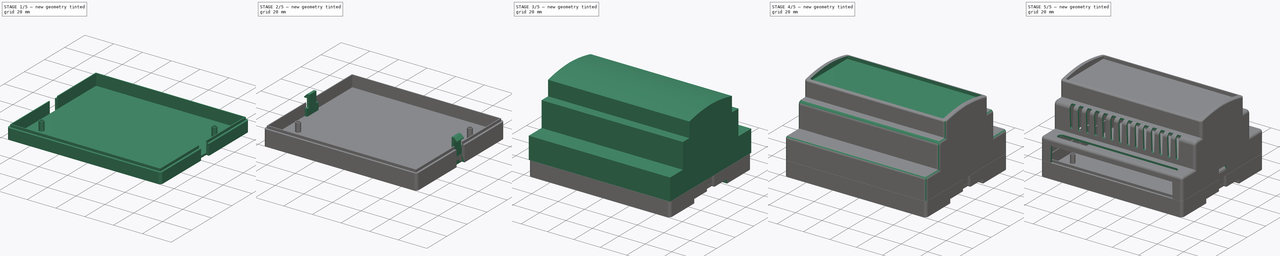
[diagram: build sequence overview — one tinted view per stage of 5, left to right]
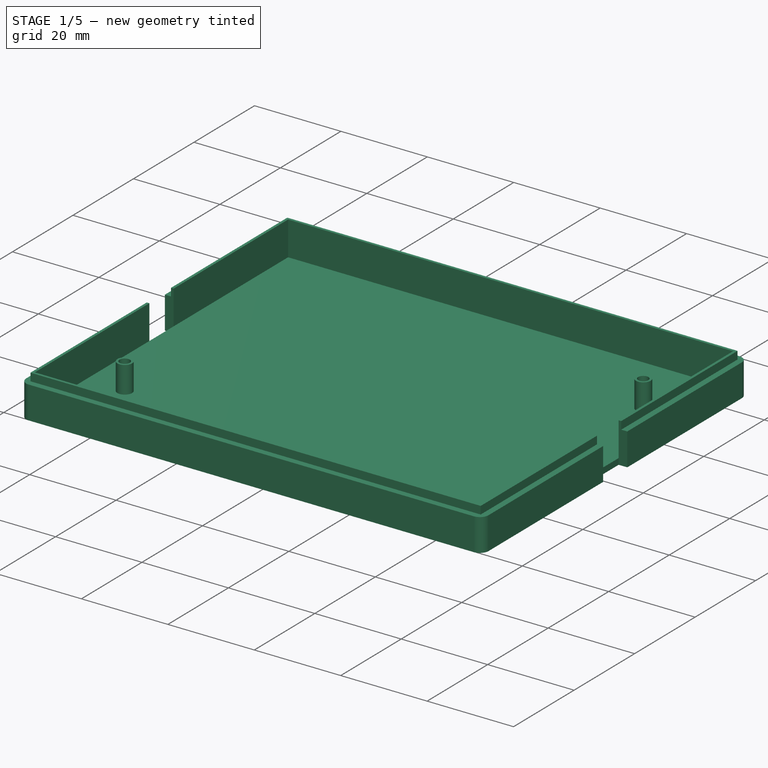
[diagram: stage 1 of 5 — iso view after this stage's code; geometry added in this stage tinted green]
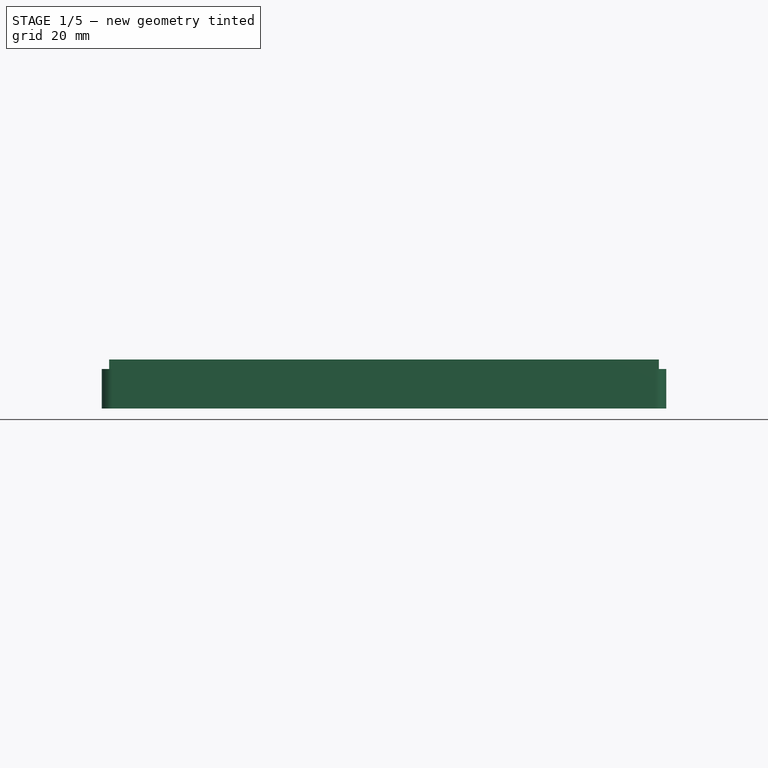
[diagram: stage 1 of 5 — front view after this stage's code; geometry added in this stage tinted green]
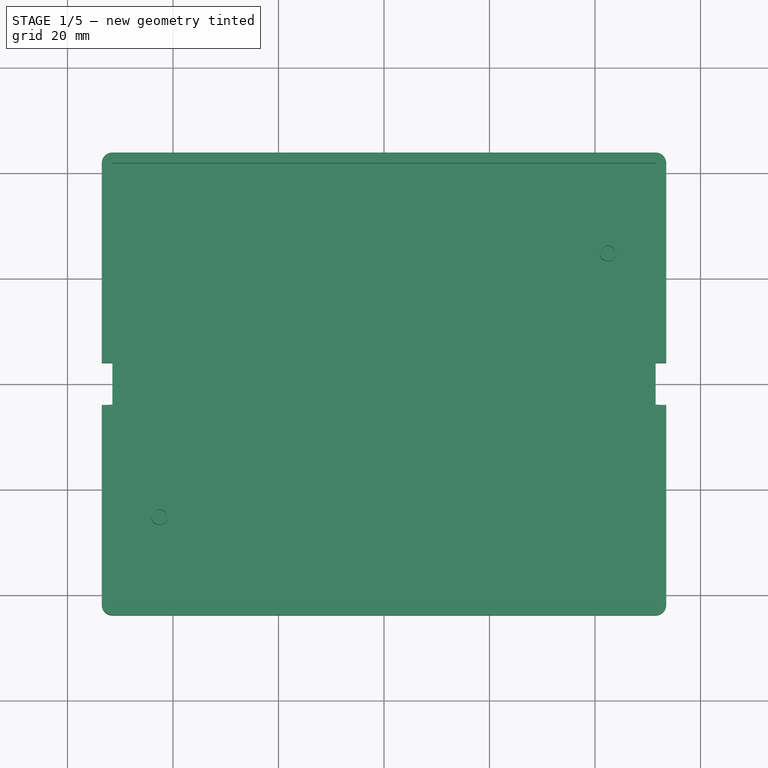
[diagram: stage 1 of 5 — top view after this stage's code; geometry added in this stage tinted green]
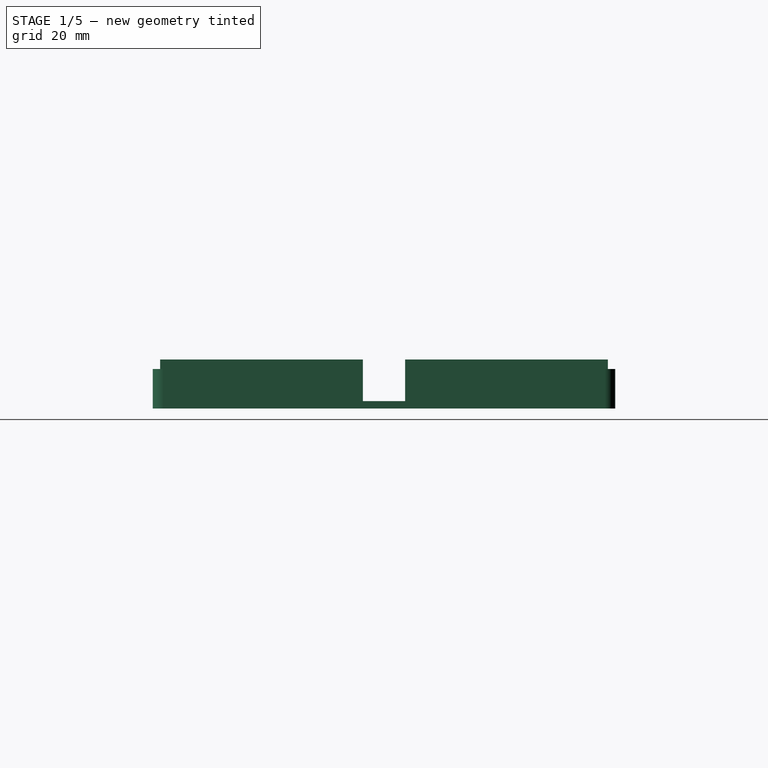
[diagram: stage 1 of 5 — right view after this stage's code; geometry added in this stage tinted green]
FCSTD DOCUMENT  (FreeCAD 1.0R39109 (Git))
Label: Tarea 2
License: All rights reserved
LicenseURL: https://en.wikipedia.org/wiki/All_rights_reserved
objects: Sketcher::SketchObject×19, PartDesign::Pocket×13, PartDesign::Pad×8, PartDesign::Fillet×7, PartDesign::Mirrored×6, PartDesign::Thickness×2, PartDesign::Chamfer×2, PartDesign::Body×2, PartDesign::LinearPattern×1, PartDesign::MultiTransform×1
note: 152 computed .brp shape members not serialized (recipe doc carries the construction recipe); baked Part::Feature solids carry a one-line shape summary decoded from their .brp

FEATURE [Sketcher::SketchObject] Sketch007
  ArcFitTolerance = 1e-06
  AttachmentSupport = -> [XY_Plane001]
  FullyConstrained = true
  MakeInternals = false
  MapMode = 5
  sketch-geometry (5):
    g0: LineSegment StartX=-53.5 StartY=-43.85 StartZ=0 EndX=53.5 EndY=-43.85 EndZ=0
    g1: LineSegment StartX=53.5 StartY=-43.85 StartZ=0 EndX=53.5 EndY=43.85 EndZ=0
    g2: LineSegment StartX=53.5 StartY=43.85 StartZ=0 EndX=-53.5 EndY=43.85 EndZ=0
    g3: LineSegment StartX=-53.5 StartY=43.85 StartZ=0 EndX=-53.5 EndY=-43.85 EndZ=0
    g4: GeomPoint [constr] X=0 Y=0 Z=0
  constraints (12):
    c: Coincident(g0,g1)
    c: Coincident(g1,g2)
    c: Coincident(g2,g3)
    c: Coincident(g3,g0)
    c: Horizontal(g0)
    c: Horizontal(g2)
    c: Vertical(g1)
    c: Vertical(g3)
    c: Symmetric(g2,g0,g4)
    c: Distance(g1,g3) = 107
    c: Distance(g0,g2) = 87.7
    c: Coincident(g4,g-1)
FEATURE [PartDesign::Pad] Pad002
  Direction = (0,0,1)
  Length = 7.6
  Length2 = 1.7
  Profile = -> Sketch007
  ReferenceAxis = -> Sketch007 [N_Axis]
  Refine = true
  Reversed = true
  Suppressed = false
  Type = 4
FEATURE [PartDesign::Thickness] Thickness001
  Base = -> Pad002 [Face6]
  BaseFeature = -> Pad002
  Intersection = false
  Join = 0
  Mode = 0
  Refine = true
  Reversed = true
  SupportTransform = false
  Suppressed = false
  Value = 2
FEATURE [PartDesign::Pocket] Pocket005
  BaseFeature = -> Thickness001
  Direction = (0,0,-1)
  Length = 0.6
  Length2 = 5
  Profile = -> Thickness001 [Face11]
  Refine = true
  Suppressed = false
  Type = 0
FEATURE [Sketcher::SketchObject] Sketch008
  ArcFitTolerance = 1e-06
  AttachmentSupport = -> [Pocket005]
  ExternalGeometry = -> [Pocket005]
  FullyConstrained = true
  MakeInternals = false
  MapMode = 5
  Placement = pos=(0,0,1.7) rot=(0,0,1;0rad)
  sketch-geometry (10):
    g0: LineSegment StartX=-52.1 StartY=-42.45 StartZ=0 EndX=52.1 EndY=-42.45 EndZ=0
    g1: LineSegment StartX=52.1 StartY=-42.45 StartZ=0 EndX=52.1 EndY=42.45 EndZ=0
    g2: LineSegment StartX=52.1 StartY=42.45 StartZ=0 EndX=-52.1 EndY=42.45 EndZ=0
    g3: LineSegment StartX=-52.1 StartY=42.45 StartZ=0 EndX=-52.1 EndY=-42.45 EndZ=0
    g4: GeomPoint [constr] X=0 Y=0 Z=0
    g5: LineSegment StartX=-53.5 StartY=-43.85 StartZ=0 EndX=53.5 EndY=-43.85 EndZ=0
    g6: LineSegment StartX=53.5 StartY=-43.85 StartZ=0 EndX=53.5 EndY=43.85 EndZ=0
    g7: LineSegment StartX=53.5 StartY=43.85 StartZ=0 EndX=-53.5 EndY=43.85 EndZ=0
    g8: LineSegment StartX=-53.5 StartY=43.85 StartZ=0 EndX=-53.5 EndY=-43.85 EndZ=0
    g9: GeomPoint [constr] X=0 Y=0 Z=0
  constraints (23):
    c: Coincident(g0,g1)
    c: Coincident(g1,g2)
    c: Coincident(g2,g3)
    c: Coincident(g3,g0)
    c: Horizontal(g0)
    c: Horizontal(g2)
    c: Vertical(g1)
    c: Vertical(g3)
    c: Symmetric(g2,g0,g4)
    c: Coincident(g4,g-1)
    c: Distance(g2,g-3) = 0.6
    c: Distance(g-3,g1) = 0.6
    c: Coincident(g5,g6)
    c: Coincident(g6,g7)
    c: Coincident(g7,g8)
    c: Coincident(g8,g5)
    c: Horizontal(g5)
    c: Horizontal(g7)
    c: Vertical(g6)
    c: Vertical(g8)
    c: Symmetric(g7,g5,g9)
    c: Coincident(g9,g4)
    c: Coincident(g6,g-4)
FEATURE [PartDesign::Pocket] Pocket006
  BaseFeature = -> Pocket005
  Direction = (0,0,-1)
  Length = 1.8
  Length2 = 5
  Profile = -> Sketch008
  ReferenceAxis = -> Sketch008 [N_Axis]
  Refine = true
  Suppressed = false
  Type = 0
FEATURE [PartDesign::Fillet] Fillet006
  Base = -> Pocket006 [Edge2,Edge4,Edge8,Edge16]
  BaseFeature = -> Pocket006
  Radius = 2
  Refine = true
  SupportTransform = false
  Suppressed = false
  UseAllEdges = false
FEATURE [Sketcher::SketchObject] Sketch009
  ArcFitTolerance = 1e-06
  AttachmentSupport = -> [Fillet006]
  FullyConstrained = true
  MakeInternals = false
  MapMode = 5
  Placement = pos=(0,0,-6.2) rot=(0,0,1;0rad)
  sketch-geometry (4):
    g0: Circle CenterX=-42.5 CenterY=-25 CenterZ=0 NormalX=0 NormalY=0 NormalZ=1 AngleXU=0 Radius=1.7
    g1: Circle CenterX=-42.5 CenterY=-25 CenterZ=0 NormalX=0 NormalY=0 NormalZ=1 AngleXU=0 Radius=1.2
    g2: Circle CenterX=42.5 CenterY=25 CenterZ=0 NormalX=0 NormalY=0 NormalZ=1 AngleXU=0 Radius=1.7
    g3: Circle CenterX=42.5 CenterY=25 CenterZ=0 NormalX=0 NormalY=0 NormalZ=1 AngleXU=0 Radius=1.2
  constraints (10):
    c: Coincident(g1,g0)
    c: Diameter(g1) = 2.4
    c: Diameter(g0) = 3.4
    c: DistanceY(g0,g-1) = 25
    c: DistanceX(g0,g-1) = 42.5
    c: Coincident(g3,g2)
    c: Equal(g3,g1)
    c: Equal(g0,g2)
    c: DistanceX(g-1,g2) = 42.5
    c: Distance(g2,g-1) = 25
FEATURE [PartDesign::Pad] Pad003
  BaseFeature = -> Fillet006
  Direction = (0,0,1)
  Length = 6.2
  Length2 = 10
  Profile = -> Sketch009
  ReferenceAxis = -> Sketch009 [N_Axis]
  Refine = true
  Suppressed = false
  Type = 0
FEATURE [Sketcher::SketchObject] Sketch010
  ArcFitTolerance = 1e-06
  AttachmentSupport = -> [Pad003]
  ExternalGeometry = -> [Pad003]
  FullyConstrained = true
  MakeInternals = false
  MapMode = 5
  Placement = pos=(53.5,0,0) rot=(0.57735,0.57735,0.57735;2.0944rad)
  sketch-geometry (4):
    g0: LineSegment StartX=-4 StartY=-7.6 StartZ=0 EndX=4 EndY=-7.6 EndZ=0
    g1: LineSegment StartX=4 StartY=-7.6 StartZ=0 EndX=4 EndY=1.7 EndZ=0
    g2: LineSegment StartX=4 StartY=1.7 StartZ=0 EndX=-4 EndY=1.7 EndZ=0
    g3: LineSegment StartX=-4 StartY=1.7 StartZ=0 EndX=-4 EndY=-7.6 EndZ=0
  constraints (11):
    c: Coincident(g0,g1)
    c: Coincident(g1,g2)
    c: Coincident(g2,g3)
    c: Coincident(g3,g0)
    c: Horizontal(g0)
    c: Vertical(g1)
    c: Vertical(g3)
    c: PointOnObject(g0,g-3)
    c: PointOnObject(g1,g-4)
    c: Symmetric(g1,g2,g-2)
    c: DistanceX(g2,g2) = 8
FEATURE [PartDesign::Pocket] Pocket007
  BaseFeature = -> Pad003
  Direction = (-1,0,0)
  Length = 0
  Length2 = 5
  Profile = -> Sketch010
  ReferenceAxis = -> Sketch010 [N_Axis]
  Refine = true
  Suppressed = false
  Type = 3
  UpToFace = -> Pad003 [Face18]
FEATURE [PartDesign::Mirrored] Mirrored003
  BaseFeature = -> Pocket007
  MirrorPlane = -> YZ_Plane001
  Originals = -> [Pocket007]
  Refine = true
  Suppressed = false
  TransformMode = 0
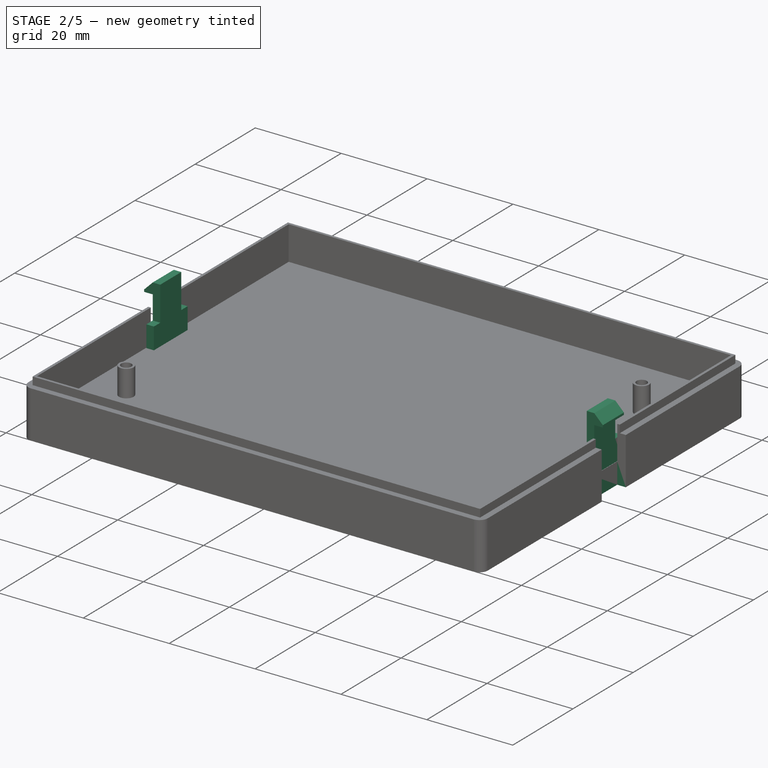
[diagram: stage 2 of 5 — iso view after this stage's code; geometry added in this stage tinted green]
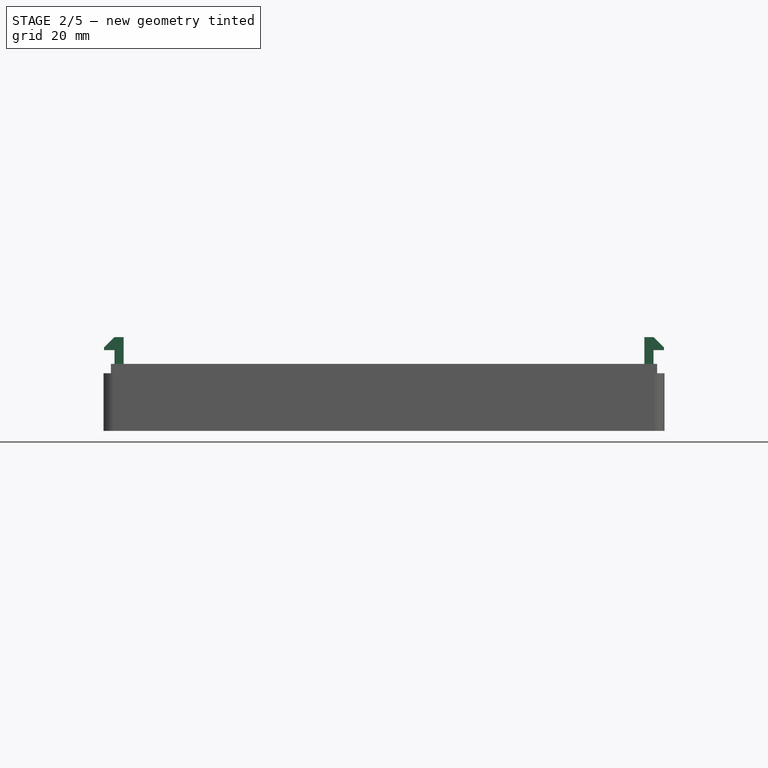
[diagram: stage 2 of 5 — front view after this stage's code; geometry added in this stage tinted green]
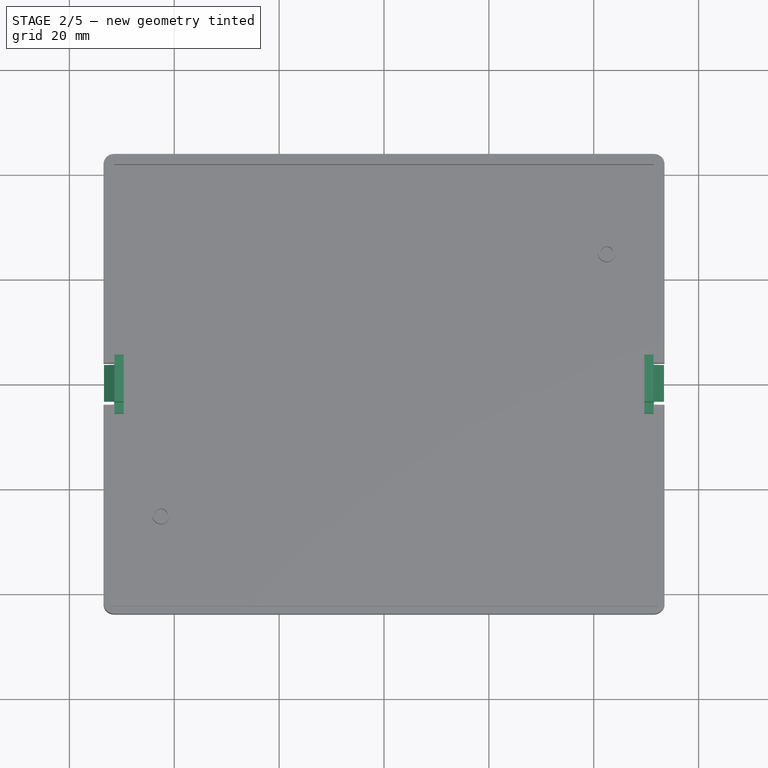
[diagram: stage 2 of 5 — top view after this stage's code; geometry added in this stage tinted green]
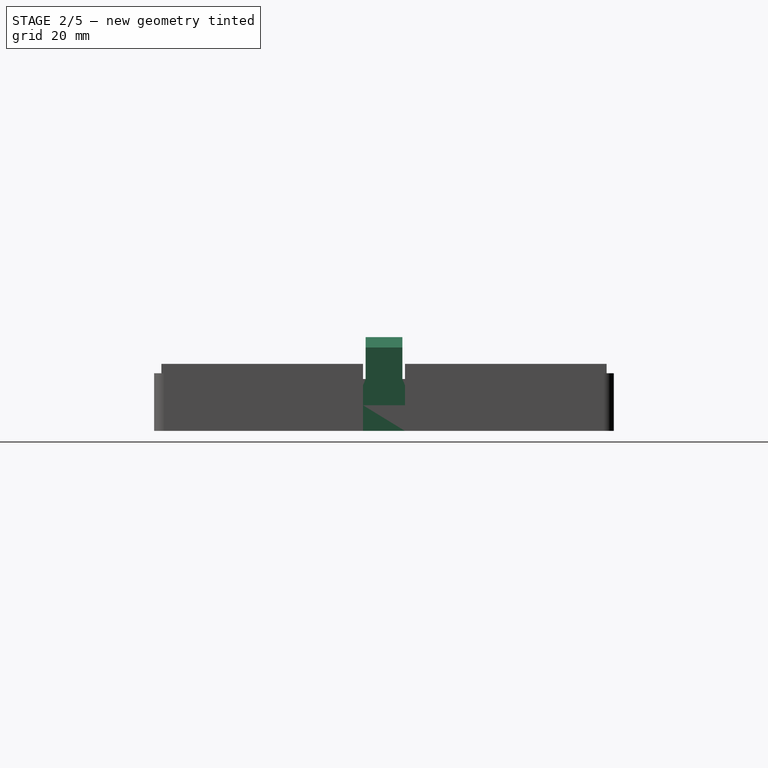
[diagram: stage 2 of 5 — right view after this stage's code; geometry added in this stage tinted green]
FEATURE [Sketcher::SketchObject] Sketch011
  ArcFitTolerance = 1e-06
  AttachmentSupport = -> [Mirrored003]
  ExternalGeometry = -> [Mirrored003]
  FullyConstrained = true
  MakeInternals = false
  MapMode = 5
  Placement = pos=(0,0,-6.2) rot=(0,0,1;0rad)
  sketch-geometry (5):
    g0: LineSegment StartX=51.4 StartY=-5.6 StartZ=0 EndX=51.4 EndY=5.6 EndZ=0
    g1: LineSegment StartX=51.4 StartY=5.6 StartZ=0 EndX=49.65 EndY=5.6 EndZ=0
    g2: LineSegment StartX=49.65 StartY=5.6 StartZ=0 EndX=49.65 EndY=-5.6 EndZ=0
    g3: LineSegment StartX=49.65 StartY=-5.6 StartZ=0 EndX=51.4 EndY=-5.6 EndZ=0
    g4: GeomPoint [constr] X=50.525 Y=1e-16 Z=0
  constraints (13):
    c: Coincident(g0,g1)
    c: Coincident(g1,g2)
    c: Coincident(g2,g3)
    c: Coincident(g3,g0)
    c: Vertical(g0)
    c: Vertical(g2)
    c: Horizontal(g1)
    c: Horizontal(g3)
    c: Symmetric(g2,g0,g4)
    c: PointOnObject(g4,g-1)
    c: Distance(g-2,g2) = 49.65
    c: Distance(g-3,g0) = 0.1
    c: DistanceY(g2,g2) = 11.2
FEATURE [PartDesign::Pad] Pad004
  BaseFeature = -> Mirrored003
  Direction = (0,0,1)
  Length = 13
  Length2 = 10
  Profile = -> Sketch011
  ReferenceAxis = -> Sketch011 [N_Axis]
  Refine = true
  Suppressed = false
  Type = 0
FEATURE [Sketcher::SketchObject] Sketch012
  ArcFitTolerance = 1e-06
  AttachmentSupport = -> [Pad004]
  ExternalGeometry = -> [Pad004]
  FullyConstrained = true
  MakeInternals = false
  MapMode = 5
  Placement = pos=(0,0,6.8) rot=(0,0,1;0rad)
  sketch-geometry (8):
    g0: LineSegment StartX=49.65 StartY=-5.6 StartZ=0 EndX=51.4 EndY=-5.6 EndZ=0
    g1: LineSegment StartX=51.4 StartY=-5.6 StartZ=0 EndX=51.4 EndY=-3.5 EndZ=0
    g2: LineSegment StartX=51.4 StartY=-3.5 StartZ=0 EndX=49.65 EndY=-3.5 EndZ=0
    g3: LineSegment StartX=49.65 StartY=-3.5 StartZ=0 EndX=49.65 EndY=-5.6 EndZ=0
    g4: LineSegment StartX=49.65 StartY=5.6 StartZ=0 EndX=51.4 EndY=5.6 EndZ=0
    g5: LineSegment StartX=51.4 StartY=5.6 StartZ=0 EndX=51.4 EndY=3.5 EndZ=0
    g6: LineSegment StartX=51.4 StartY=3.5 StartZ=0 EndX=49.65 EndY=3.5 EndZ=0
    g7: LineSegment StartX=49.65 StartY=3.5 StartZ=0 EndX=49.65 EndY=5.6 EndZ=0
  constraints (19):
    c: Coincident(g0,g1)
    c: Coincident(g1,g2)
    c: Coincident(g2,g3)
    c: Coincident(g3,g0)
    c: Horizontal(g0)
    c: Horizontal(g2)
    c: Vertical(g1)
    c: Vertical(g3)
    c: Coincident(g0,g-3)
    c: PointOnObject(g1,g-4)
    c: Distance(g-1,g2) = 3.5
    c: Symmetric(g0,g4,g-1)
    c: Symmetric(g0,g4,g-1)
    c: Symmetric(g1,g5,g-1)
    c: Symmetric(g1,g5,g-1)
    c: Symmetric(g2,g6,g-1)
    c: Symmetric(g2,g6,g-1)
    c: Symmetric(g3,g7,g-1)
    c: Symmetric(g3,g7,g-1)
FEATURE [PartDesign::Pocket] Pocket008
  BaseFeature = -> Pad004
  Direction = (0,0,-1)
  Length = 8
  Length2 = 5
  Profile = -> Sketch012
  ReferenceAxis = -> Sketch012 [N_Axis]
  Refine = true
  Suppressed = false
  Type = 0
FEATURE [Sketcher::SketchObject] Sketch013
  ArcFitTolerance = 1e-06
  AttachmentSupport = -> [Pocket008]
  ExternalGeometry = -> [Pocket008]
  FullyConstrained = true
  MakeInternals = false
  MapMode = 5
  Placement = pos=(51.4,0,0) rot=(0.57735,0.57735,0.57735;2.0944rad)
  sketch-geometry (4):
    g0: LineSegment StartX=-3.5 StartY=4.3 StartZ=0 EndX=3.5 EndY=4.3 EndZ=0
    g1: LineSegment StartX=3.5 StartY=4.3 StartZ=0 EndX=3.5 EndY=6.8 EndZ=0
    g2: LineSegment StartX=3.5 StartY=6.8 StartZ=0 EndX=-3.5 EndY=6.8 EndZ=0
    g3: LineSegment StartX=-3.5 StartY=6.8 StartZ=0 EndX=-3.5 EndY=4.3 EndZ=0
  constraints (11):
    c: Coincident(g0,g1)
    c: Coincident(g1,g2)
    c: Coincident(g2,g3)
    c: Coincident(g3,g0)
    c: Horizontal(g0)
    c: Horizontal(g2)
    c: Vertical(g1)
    c: Vertical(g3)
    c: PointOnObject(g0,g-4)
    c: Coincident(g1,g-3)
    c: DistanceY(g1,g1) = 2.5
FEATURE [PartDesign::Pad] Pad005
  BaseFeature = -> Pocket008
  Direction = (1,0,0)
  Length = 2
  Length2 = 10
  Profile = -> Sketch013
  ReferenceAxis = -> Sketch013 [N_Axis]
  Refine = true
  Suppressed = false
  Type = 0
FEATURE [PartDesign::Chamfer] Chamfer
  Angle = 45
  Base = -> Pad005 [Edge129]
  BaseFeature = -> Pad005
  ChamferType = 0
  FlipDirection = false
  Refine = true
  Size = 2
  Size2 = 1
  SupportTransform = false
  Suppressed = false
  UseAllEdges = false
FEATURE [PartDesign::Mirrored] Mirrored004
  BaseFeature = -> Chamfer
  MirrorPlane = -> YZ_Plane001
  Originals = -> [Pad004,Pad005,Pocket008,Chamfer]
  Refine = true
  Suppressed = false
  TransformMode = 0
FEATURE [PartDesign::Body] Body
  AllowCompound = false
  Group = -> [Sketch,Pad,Sketch001,Pocket,Mirrored,Thickness,Fillet,Fillet001,Fillet002,Sketch002,Pocket001,Fillet003,Sketch003,Pad001,Sketch004,Pocket002,Mirrored001,Sketch005,Fillet004,Fillet005,Pocket003,MultiTransform,LinearPattern,Mirrored002,Sketch006,Pocket004,Sketch014,Pocket009]
  Origin = -> Origin
  Tip = -> Pocket009
FEATURE [Sketcher::SketchObject] Sketch015
  ArcFitTolerance = 1e-06
  AttachmentSupport = -> [Mirrored004]
  ExternalGeometry = -> [Mirrored004]
  FullyConstrained = true
  MakeInternals = false
  MapMode = 5
  Placement = pos=(0,0,-7.6) rot=(1,0,0;3.14159rad)
  sketch-geometry (13):
    g0: LineSegment StartX=51.5 StartY=41.85 StartZ=0 EndX=-51.5 EndY=41.85 EndZ=0
    g1: LineSegment StartX=-51.5 StartY=41.85 StartZ=0 EndX=-51.5 EndY=20 EndZ=0
    g2: LineSegment StartX=-51.5 StartY=20 StartZ=0 EndX=51.5 EndY=20 EndZ=0
    g3: LineSegment StartX=51.5 StartY=20 StartZ=0 EndX=51.5 EndY=41.85 EndZ=0
    g4: GeomPoint [constr] X=0 Y=30.925 Z=0
    g5: LineSegment StartX=-51.5 StartY=-41.85 StartZ=0 EndX=-12 EndY=-41.85 EndZ=0
    g6: LineSegment StartX=-12 StartY=-41.85 StartZ=0 EndX=-12 EndY=-20 EndZ=0
    g7: LineSegment StartX=-12 StartY=-20 StartZ=0 EndX=-51.5 EndY=-20 EndZ=0
    g8: LineSegment StartX=-51.5 StartY=-20 StartZ=0 EndX=-51.5 EndY=-41.85 EndZ=0
    g9: LineSegment StartX=51.5 StartY=-41.85 StartZ=0 EndX=12 EndY=-41.85 EndZ=0
    g10: LineSegment StartX=12 StartY=-41.85 StartZ=0 EndX=12 EndY=-20 EndZ=0
    g11: LineSegment StartX=12 StartY=-20 StartZ=0 EndX=51.5 EndY=-20 EndZ=0
    g12: LineSegment StartX=51.5 StartY=-20 StartZ=0 EndX=51.5 EndY=-41.85 EndZ=0
  constraints (33):
    c: Coincident(g0,g1)
    c: Coincident(g1,g2)
    c: Coincident(g2,g3)
    c: Coincident(g3,g0)
    c: Horizontal(g0)
    c: Horizontal(g2)
    c: Vertical(g1)
    c: Vertical(g3)
    c: Symmetric(g2,g0,g4)
    c: PointOnObject(g4,g-2)
    c: Distance(g-3,g0) = 2
    c: Distance(g-5,g3) = 2
    c: Distance(g2,g-1) = 20
    c: Coincident(g5,g6)
    c: Coincident(g6,g7)
    c: Coincident(g7,g8)
    c: Coincident(g8,g5)
    c: Horizontal(g5)
    c: Horizontal(g7)
    c: Vertical(g6)
    c: Vertical(g8)
    c: Distance(g7,g-1) = 20
    c: Distance(g-4,g8) = 2
    c: Distance(g5,g-6) = 2
    c: Distance(g-2,g6) = 12
    c: Symmetric(g5,g9,g-2)
    c: Symmetric(g5,g9,g-2)
    c: Symmetric(g6,g10,g-2)
    c: Symmetric(g6,g10,g-2)
    c: Symmetric(g7,g11,g-2)
    c: Symmetric(g7,g11,g-2)
    c: Symmetric(g8,g12,g-2)
    c: Symmetric(g8,g12,g-2)
FEATURE [PartDesign::Pad] Pad006
  BaseFeature = -> Mirrored004
  Direction = (0,0,-1)
  Length = 3.5
  Length2 = 10
  Profile = -> Mirrored004 [Face31]
  Refine = true
  Suppressed = false
  Type = 0
FEATURE [PartDesign::Pocket] Pocket010
  BaseFeature = -> Pad006
  Direction = (0,0,1)
  Length = 5
  Length2 = 5
  Profile = -> Sketch015
  ReferenceAxis = -> Sketch015 [N_Axis]
  Refine = true
  Reversed = true
  Suppressed = false
  Type = 1
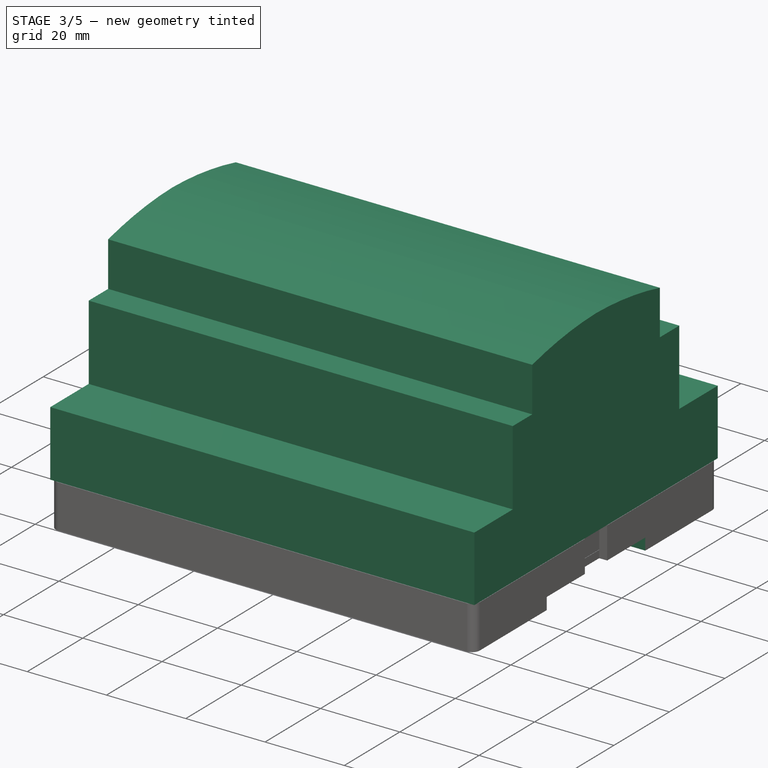
[diagram: stage 3 of 5 — iso view after this stage's code; geometry added in this stage tinted green]
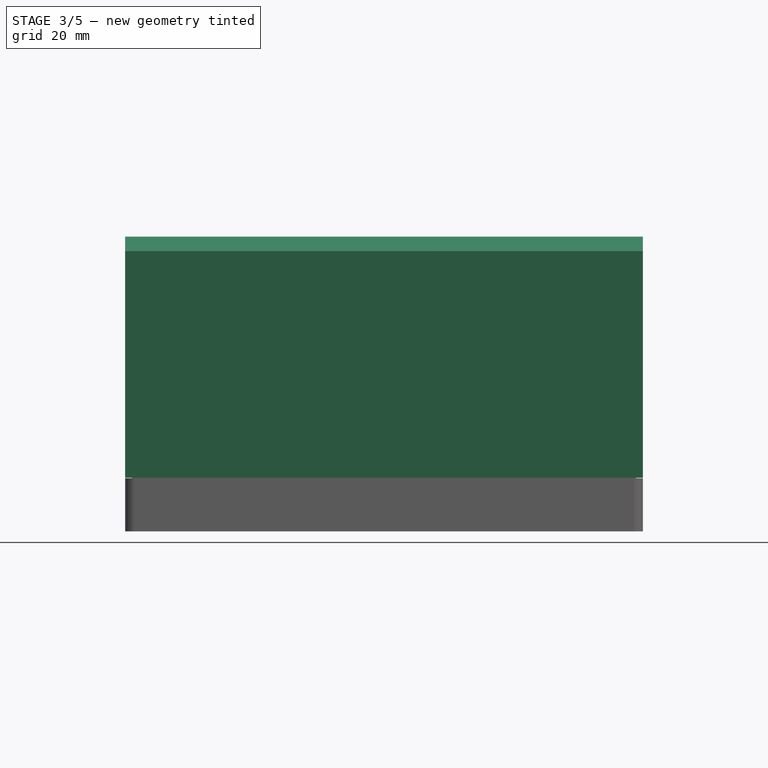
[diagram: stage 3 of 5 — front view after this stage's code; geometry added in this stage tinted green]
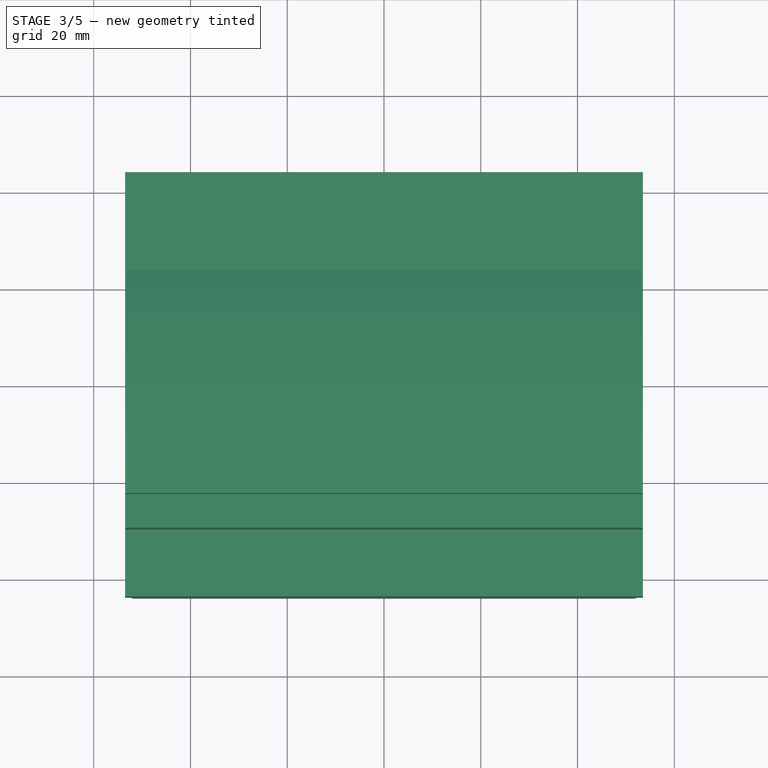
[diagram: stage 3 of 5 — top view after this stage's code; geometry added in this stage tinted green]
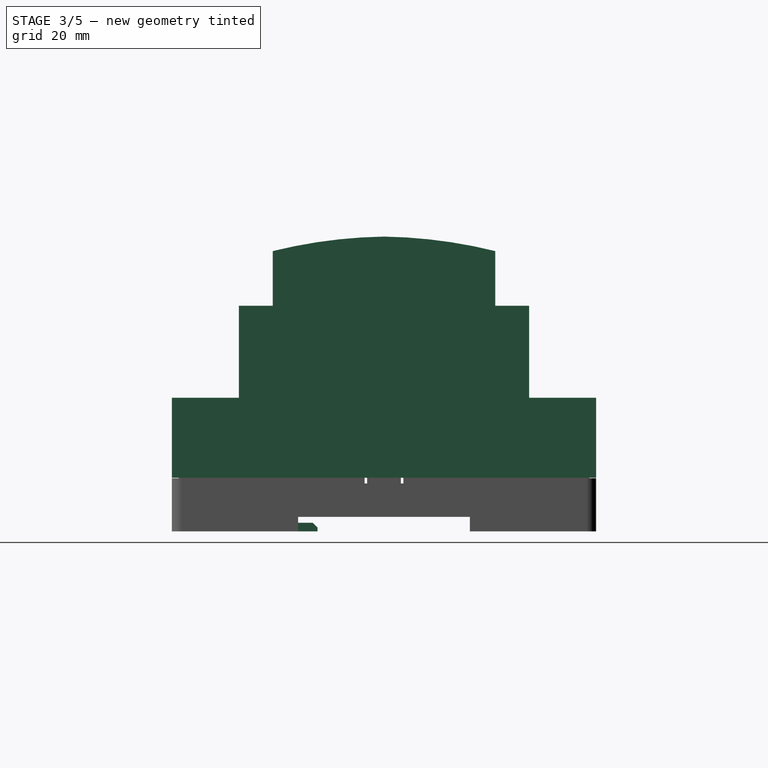
[diagram: stage 3 of 5 — right view after this stage's code; geometry added in this stage tinted green]
FEATURE [Sketcher::SketchObject] Sketch
  ArcFitTolerance = 1e-06
  AttachmentSupport = -> [YZ_Plane]
  FullyConstrained = true
  MakeInternals = false
  MapMode = 5
  Placement = pos=(0,0,0) rot=(0.57735,0.57735,0.57735;2.0944rad)
  sketch-geometry (14):
    g0: LineSegment StartX=-43.85 StartY=0 StartZ=0 EndX=-43.85 EndY=16.54 EndZ=0
    g1: LineSegment StartX=-43.85 StartY=16.54 StartZ=0 EndX=-30 EndY=16.54 EndZ=0
    g2: LineSegment StartX=-30 StartY=16.54 StartZ=0 EndX=-30 EndY=35.54 EndZ=0
    g3: LineSegment StartX=-30 StartY=35.54 StartZ=0 EndX=-23 EndY=35.54 EndZ=0
    g4: LineSegment StartX=-23 StartY=35.54 StartZ=0 EndX=-23 EndY=49.84 EndZ=0
    g5: LineSegment StartX=-23 StartY=49.84 StartZ=0 EndX=0 EndY=49.84 EndZ=0
    g6: LineSegment StartX=-43.85 StartY=0 StartZ=0 EndX=0 EndY=0 EndZ=0
    g7: LineSegment StartX=43.85 StartY=0 StartZ=0 EndX=43.85 EndY=16.54 EndZ=0
    g8: LineSegment StartX=43.85 StartY=16.54 StartZ=0 EndX=30 EndY=16.54 EndZ=0
    g9: LineSegment StartX=30 StartY=16.54 StartZ=0 EndX=30 EndY=35.54 EndZ=0
    g10: LineSegment StartX=30 StartY=35.54 StartZ=0 EndX=23 EndY=35.54 EndZ=0
    g11: LineSegment StartX=23 StartY=35.54 StartZ=0 EndX=23 EndY=49.84 EndZ=0
    g12: LineSegment StartX=23 StartY=49.84 StartZ=0 EndX=0 EndY=49.84 EndZ=0
    g13: LineSegment StartX=43.85 StartY=0 StartZ=0 EndX=0 EndY=0 EndZ=0
  constraints (35):
    c: PointOnObject(g5,g-2)
    c: PointOnObject(g0,g-1)
    c: Coincident(g0,g1)
    c: Horizontal(g1)
    c: Coincident(g1,g2)
    c: Coincident(g2,g3)
    c: Horizontal(g3)
    c: Coincident(g3,g4)
    c: Coincident(g4,g5)
    c: Horizontal(g5)
    c: Distance(g5,g5) = 23
    c: DistanceX(g0,g-1) = 43.85
    c: Distance(g-1,g5) = 49.84
    c: Distance(g-1,g3) = 35.54
    c: Distance(g-1,g1) = 16.54
    c: Coincident(g6,g0)
    c: Coincident(g6,g-1)
    c: Distance(g2,g-2) = 30
    c: Symmetric(g0,g7,g-2)
    c: Symmetric(g0,g7,g-2)
    c: Symmetric(g1,g8,g-2)
    c: Symmetric(g1,g8,g-2)
    c: Symmetric(g2,g9,g-2)
    c: Symmetric(g2,g9,g-2)
    c: Symmetric(g3,g10,g-2)
    c: Symmetric(g3,g10,g-2)
    c: Symmetric(g4,g11,g-2)
    c: Symmetric(g4,g11,g-2)
    c: Symmetric(g5,g12,g-2)
    c: Symmetric(g6,g13,g-2)
    c: Coincident(g12,g5)
    c: Coincident(g13,g6)
    c: Vertical(g4)
    c: Vertical(g2)
    c: Vertical(g0)
FEATURE [PartDesign::Pad] Pad
  Direction = (1,0,0)
  Length = 107
  Length2 = 10
  Midplane = true
  Placement = pos=(0,0,0) rot=(1,1,1;2.0944rad)
  Profile = -> Sketch
  ReferenceAxis = -> Sketch [N_Axis]
  Refine = true
  Suppressed = false
  Type = 0
FEATURE [Sketcher::SketchObject] Sketch001
  ArcFitTolerance = 1e-06
  AttachmentSupport = -> [Pad]
  ExternalGeometry = -> [Pad]
  FullyConstrained = true
  MakeInternals = false
  MapMode = 5
  Placement = pos=(53.5,0,0) rot=(0.57735,0.57735,0.57735;2.0944rad)
  sketch-geometry (3):
    g0: ArcOfCircle CenterX=1.61095 CenterY=-52.1773 CenterZ=0 NormalX=0 NormalY=0 NormalZ=1 AngleXU=0 Radius=102.03 StartAngle=1.58659 EndAngle=1.81441
    g1: LineSegment StartX=-23 StartY=46.84 StartZ=0 EndX=-23 EndY=49.84 EndZ=0
    g2: LineSegment StartX=-23 StartY=49.84 StartZ=0 EndX=3.411e-13 EndY=49.84 EndZ=0
  constraints (10):
    c: PointOnObject(g0,g-2)
    c: PointOnObject(g0,g-4)
    c: PointOnObject(g0,g-3)
    c: DistanceY(g0,g-4) = 3
    c: Coincident(g0,g1)
    c: Coincident(g1,g2)
    c: Coincident(g2,g0)
    c: Horizontal(g2)
    c: Radius(g0) = 102.03
    c: DistanceX(g2,g2) = 23
FEATURE [PartDesign::Pocket] Pocket
  BaseFeature = -> Pad
  Direction = (-1,0,0)
  Length = 5
  Length2 = 5
  Placement = pos=(0,0,0) rot=(1,1,1;2.0944rad)
  Profile = -> Sketch001
  ReferenceAxis = -> Sketch001 [N_Axis]
  Refine = true
  Suppressed = false
  Type = 1
FEATURE [PartDesign::Mirrored] Mirrored
  BaseFeature = -> Pocket
  MirrorPlane = -> XZ_Plane
  Originals = -> [Pocket]
  Placement = pos=(0,0,0) rot=(1,1,1;2.0944rad)
  Refine = true
  Suppressed = false
  TransformMode = 0
FEATURE [Sketcher::SketchObject] Sketch016
  ArcFitTolerance = 1e-06
  AttachmentSupport = -> [Pocket010]
  ExternalGeometry = -> [Pocket010]
  FullyConstrained = true
  MakeInternals = false
  MapMode = 5
  Placement = pos=(-53.5,0,0) rot=(0.57735,-0.57735,-0.57735;2.0944rad)
  sketch-geometry (5):
    g0: LineSegment StartX=17.75 StartY=-8.1 StartZ=0 EndX=-17.75 EndY=-8.1 EndZ=0
    g1: LineSegment StartX=-17.75 StartY=-8.1 StartZ=0 EndX=-17.75 EndY=-11.1 EndZ=0
    g2: LineSegment StartX=-17.75 StartY=-11.1 StartZ=0 EndX=17.75 EndY=-11.1 EndZ=0
    g3: LineSegment StartX=17.75 StartY=-11.1 StartZ=0 EndX=17.75 EndY=-8.1 EndZ=0
    g4: GeomPoint [constr] X=0 Y=-9.6 Z=0
  constraints (13):
    c: Coincident(g0,g1)
    c: Coincident(g1,g2)
    c: Coincident(g2,g3)
    c: Coincident(g3,g0)
    c: Horizontal(g0)
    c: Horizontal(g2)
    c: Vertical(g1)
    c: Vertical(g3)
    c: Symmetric(g2,g0,g4)
    c: PointOnObject(g4,g-2)
    c: PointOnObject(g2,g-3)
    c: DistanceX(g2,g2) = 35.5
    c: DistanceY(g3,g3) = 3
FEATURE [PartDesign::Pocket] Pocket011
  BaseFeature = -> Pocket010
  Direction = (1,0,0)
  Length = 9
  Length2 = 5
  Profile = -> Sketch016
  ReferenceAxis = -> Sketch016 [N_Axis]
  Refine = true
  Suppressed = false
  Type = 1
FEATURE [Sketcher::SketchObject] Sketch017
  ArcFitTolerance = 1e-06
  AttachmentSupport = -> [Pocket011]
  ExternalGeometry = -> [Pocket011]
  FullyConstrained = true
  MakeInternals = false
  MapMode = 5
  Placement = pos=(0,-17.75,0) rot=(0,0.707107,0.707107;3.14159rad)
  sketch-geometry (4):
    g0: LineSegment StartX=-48.5 StartY=-11.1 StartZ=0 EndX=-26 EndY=-11.1 EndZ=0
    g1: LineSegment StartX=-26 StartY=-11.1 StartZ=0 EndX=-26 EndY=-8.1 EndZ=0
    g2: LineSegment StartX=-26 StartY=-8.1 StartZ=0 EndX=-48.5 EndY=-8.1 EndZ=0
    g3: LineSegment StartX=-48.5 StartY=-8.1 StartZ=0 EndX=-48.5 EndY=-11.1 EndZ=0
  constraints (12):
    c: Coincident(g0,g1)
    c: Coincident(g1,g2)
    c: Coincident(g2,g3)
    c: Coincident(g3,g0)
    c: Horizontal(g0)
    c: Horizontal(g2)
    c: Vertical(g1)
    c: Vertical(g3)
    c: PointOnObject(g0,g-3)
    c: PointOnObject(g1,g-4)
    c: DistanceX(g0,g0) = 22.5
    c: Distance(g-3,g3) = 5
FEATURE [PartDesign::Pad] Pad007
  BaseFeature = -> Pocket011
  Direction = (0,1,-2e-16)
  Length = 4
  Length2 = 10
  Profile = -> Sketch017
  ReferenceAxis = -> Sketch017 [N_Axis]
  Refine = true
  Suppressed = false
  Type = 0
FEATURE [Sketcher::SketchObject] Sketch018
  ArcFitTolerance = 1e-06
  AttachmentSupport = -> [Pad007]
  ExternalGeometry = -> [Pad007]
  FullyConstrained = true
  MakeInternals = false
  MapMode = 5
  Placement = pos=(48.5,0,0) rot=(0.57735,0.57735,0.57735;2.0944rad)
  sketch-geometry (4):
    g0: LineSegment StartX=-17.75 StartY=-8.1 StartZ=0 EndX=-17.75 EndY=-9.3 EndZ=0
    g1: LineSegment StartX=-17.75 StartY=-9.3 StartZ=0 EndX=-13.75 EndY=-9.3 EndZ=0
    g2: LineSegment StartX=-13.75 StartY=-9.3 StartZ=0 EndX=-13.75 EndY=-8.1 EndZ=0
    g3: LineSegment StartX=-13.75 StartY=-8.1 StartZ=0 EndX=-17.75 EndY=-8.1 EndZ=0
  constraints (11):
    c: Coincident(g0,g1)
    c: Coincident(g1,g2)
    c: Coincident(g2,g3)
    c: Coincident(g3,g0)
    c: Vertical(g0)
    c: Vertical(g2)
    c: Horizontal(g1)
    c: Horizontal(g3)
    c: Coincident(g0,g-3)
    c: PointOnObject(g1,g-4)
    c: Distance(g3,g1) = 1.2
FEATURE [PartDesign::Pocket] Pocket012
  BaseFeature = -> Pad007
  Direction = (-1,0,0)
  Length = 5
  Length2 = 5
  Profile = -> Sketch018
  ReferenceAxis = -> Sketch018 [N_Axis]
  Refine = true
  Suppressed = false
  Type = 1
FEATURE [PartDesign::Chamfer] Chamfer001
  Angle = 45
  Base = -> Pocket012 [Edge54]
  BaseFeature = -> Pocket012
  ChamferType = 0
  FlipDirection = false
  Refine = true
  Size = 1
  Size2 = 1
  SupportTransform = false
  Suppressed = false
  UseAllEdges = false
FEATURE [PartDesign::Mirrored] Mirrored005
  BaseFeature = -> Chamfer001
  MirrorPlane = -> YZ_Plane001
  Originals = -> [Pad007,Pocket012,Chamfer001]
  Refine = true
  Suppressed = false
  TransformMode = 0
FEATURE [PartDesign::Body] Body001
  AllowCompound = false
  Group = -> [Sketch007,Pad002,Thickness001,Pocket005,Sketch008,Pocket006,Fillet006,Sketch009,Pad003,Sketch010,Pocket007,Mirrored003,Sketch011,Pad004,Sketch012,Pocket008,Sketch013,Pad005,Chamfer,Mirrored004,Sketch015,Pad006,Pocket010,Sketch016,Pocket011,Sketch017,Pad007,Sketch018,Pocket012,Chamfer001,Mirrored005]
  Origin = -> Origin001
  Tip = -> Mirrored005
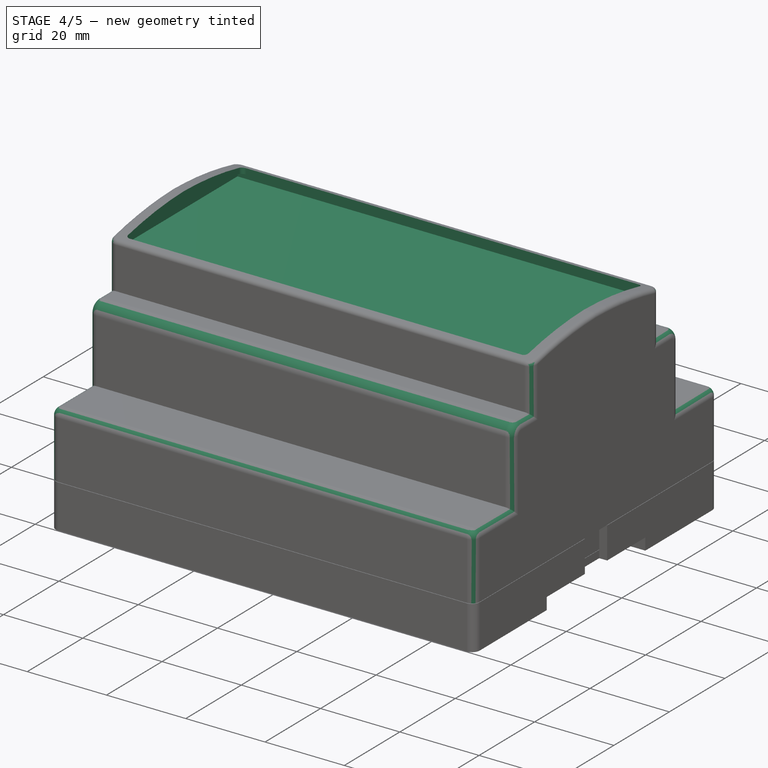
[diagram: stage 4 of 5 — iso view after this stage's code; geometry added in this stage tinted green]
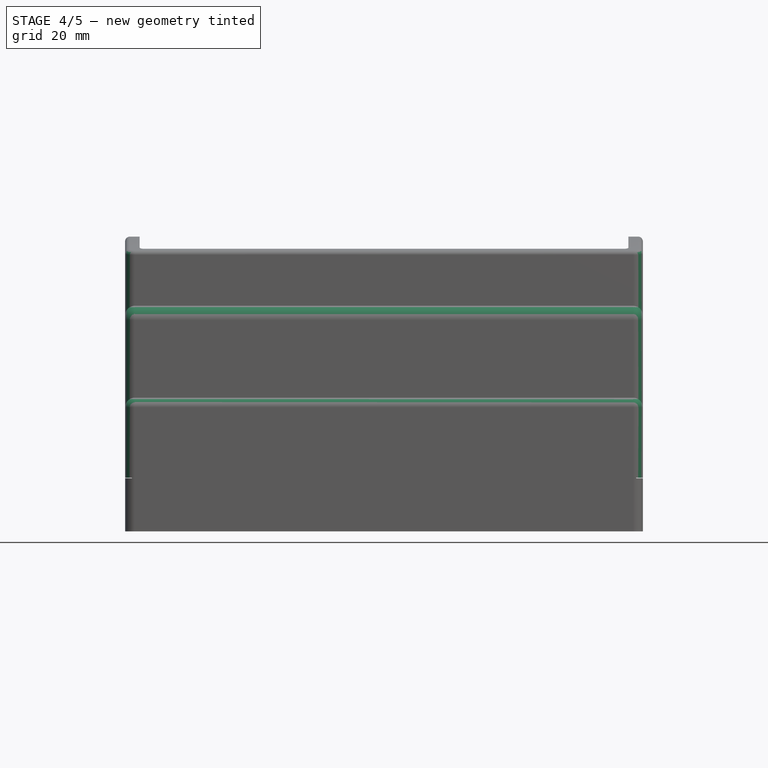
[diagram: stage 4 of 5 — front view after this stage's code; geometry added in this stage tinted green]
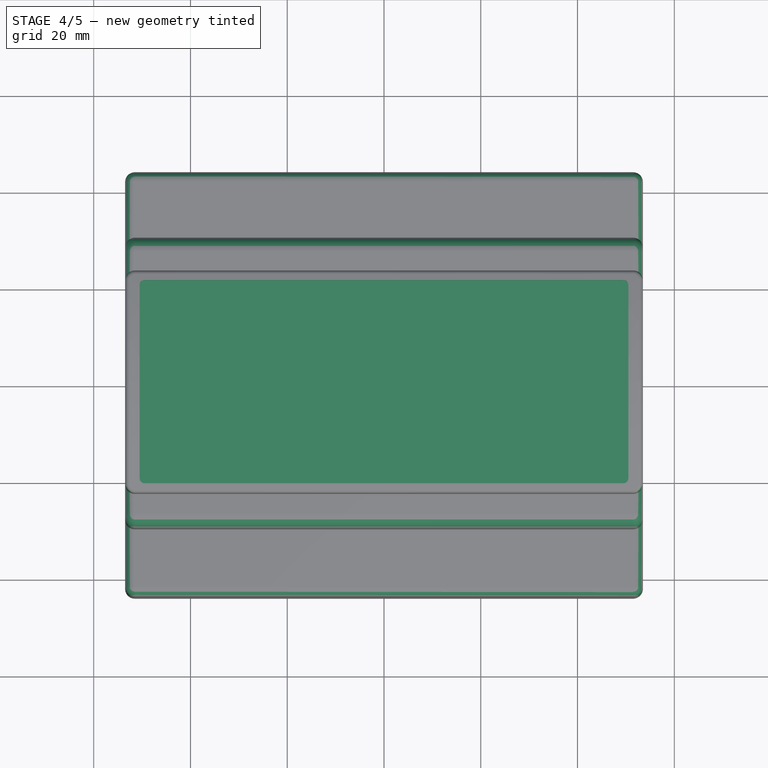
[diagram: stage 4 of 5 — top view after this stage's code; geometry added in this stage tinted green]
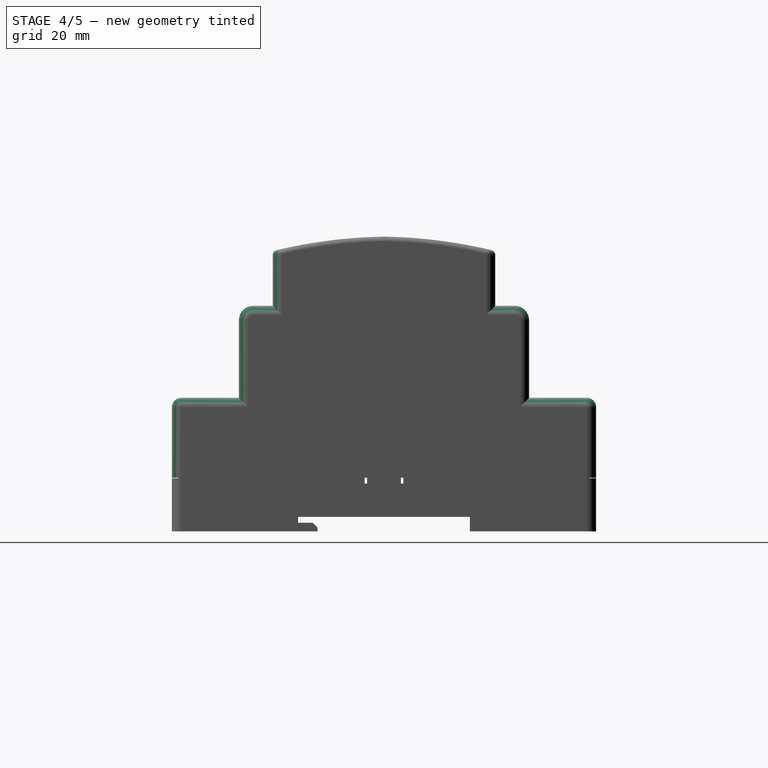
[diagram: stage 4 of 5 — right view after this stage's code; geometry added in this stage tinted green]
FEATURE [PartDesign::Thickness] Thickness
  Base = -> Mirrored [Face2]
  BaseFeature = -> Mirrored
  Intersection = false
  Join = 1
  Mode = 0
  Refine = true
  Reversed = true
  SupportTransform = false
  Suppressed = false
  Value = 1.4
FEATURE [PartDesign::Fillet] Fillet
  Base = -> Thickness [Edge32,Edge38]
  BaseFeature = -> Thickness
  Radius = 3
  Refine = true
  SupportTransform = false
  Suppressed = false
  UseAllEdges = false
FEATURE [PartDesign::Fillet] Fillet001
  Base = -> Fillet [Edge21,Edge26,Edge22,Edge18,Edge20,Edge24,Edge5,Edge3,Edge1,Edge2,Edge4,Edge6,Edge28,Edge12,Edge14,Edge15,Edge13,Edge11,Edge9,Edge37,Edge38,Edge42,Edge46,Edge49,Edge48,Edge43]
  BaseFeature = -> Fillet
  Radius = 2
  Refine = true
  SupportTransform = false
  Suppressed = false
  UseAllEdges = false
FEATURE [PartDesign::Fillet] Fillet002
  Base = -> Fillet001 [Edge14]
  BaseFeature = -> Fillet001
  Radius = 1
  Refine = true
  SupportTransform = false
  Suppressed = false
  UseAllEdges = false
FEATURE [Sketcher::SketchObject] Sketch002
  ArcFitTolerance = 1e-06
  AttachmentSupport = -> [Fillet002]
  FullyConstrained = true
  MakeInternals = false
  MapMode = 5
  Placement = pos=(0,0,0) rot=(1,0,0;3.14159rad)
  sketch-geometry (5):
    g0: LineSegment StartX=-50.5 StartY=-21 StartZ=0 EndX=50.5 EndY=-21 EndZ=0
    g1: LineSegment StartX=50.5 StartY=-21 StartZ=0 EndX=50.5 EndY=21 EndZ=0
    g2: LineSegment StartX=50.5 StartY=21 StartZ=0 EndX=-50.5 EndY=21 EndZ=0
    g3: LineSegment StartX=-50.5 StartY=21 StartZ=0 EndX=-50.5 EndY=-21 EndZ=0
    g4: GeomPoint [constr] X=0 Y=0 Z=0
  constraints (12):
    c: Coincident(g0,g1)
    c: Coincident(g1,g2)
    c: Coincident(g2,g3)
    c: Coincident(g3,g0)
    c: Horizontal(g0)
    c: Horizontal(g2)
    c: Vertical(g1)
    c: Vertical(g3)
    c: Symmetric(g2,g0,g4)
    c: Distance(g1,g3) = 101
    c: Distance(g0,g2) = 42
    c: Coincident(g4,g-1)
FEATURE [PartDesign::Pocket] Pocket001
  BaseFeature = -> Fillet002
  Direction = (0,0,1)
  Length = 5
  Length2 = 5
  Profile = -> Sketch002
  ReferenceAxis = -> Sketch002 [N_Axis]
  Refine = true
  Suppressed = false
  Type = 1
FEATURE [PartDesign::Fillet] Fillet003
  Base = -> Pocket001 [Edge155,Edge158,Edge161,Edge156]
  BaseFeature = -> Pocket001
  Radius = 1
  Refine = true
  SupportTransform = false
  Suppressed = false
  UseAllEdges = false
FEATURE [Sketcher::SketchObject] Sketch003
  ArcFitTolerance = 1e-06
  AttachmentSupport = -> [Fillet003]
  ExternalGeometry = -> [Fillet003]
  FullyConstrained = true
  MakeInternals = false
  MapMode = 5
  Placement = pos=(-52.1,0,0) rot=(0.57735,0.57735,0.57735;2.0944rad)
  sketch-geometry (4):
    g0: LineSegment StartX=-21.6 StartY=44.54 StartZ=0 EndX=21.6 EndY=44.54 EndZ=0
    g1: LineSegment StartX=-21.6 StartY=43.14 StartZ=0 EndX=21.6 EndY=43.14 EndZ=0
    g2: LineSegment StartX=-21.6 StartY=43.14 StartZ=0 EndX=-21.6 EndY=44.54 EndZ=0
    g3: LineSegment StartX=21.6 StartY=44.54 StartZ=0 EndX=21.6 EndY=43.14 EndZ=0
  constraints (12):
    c: PointOnObject(g0,g-3)
    c: PointOnObject(g0,g-4)
    c: Horizontal(g0)
    c: Distance(g-5,g0) = 5.3
    c: PointOnObject(g1,g-3)
    c: PointOnObject(g1,g-4)
    c: Horizontal(g1)
    c: Distance(g0,g1) = 1.4
    c: Coincident(g0,g2)
    c: Coincident(g2,g1)
    c: Coincident(g3,g0)
    c: Coincident(g3,g1)
FEATURE [PartDesign::Pad] Pad001
  BaseFeature = -> Fillet003
  Direction = (1,0,0)
  Length = 10
  Length2 = 10
  Profile = -> Sketch003
  ReferenceAxis = -> Sketch003 [N_Axis]
  Refine = true
  Suppressed = false
  Type = 3
  UpToFace = -> Fillet003 [Face30]
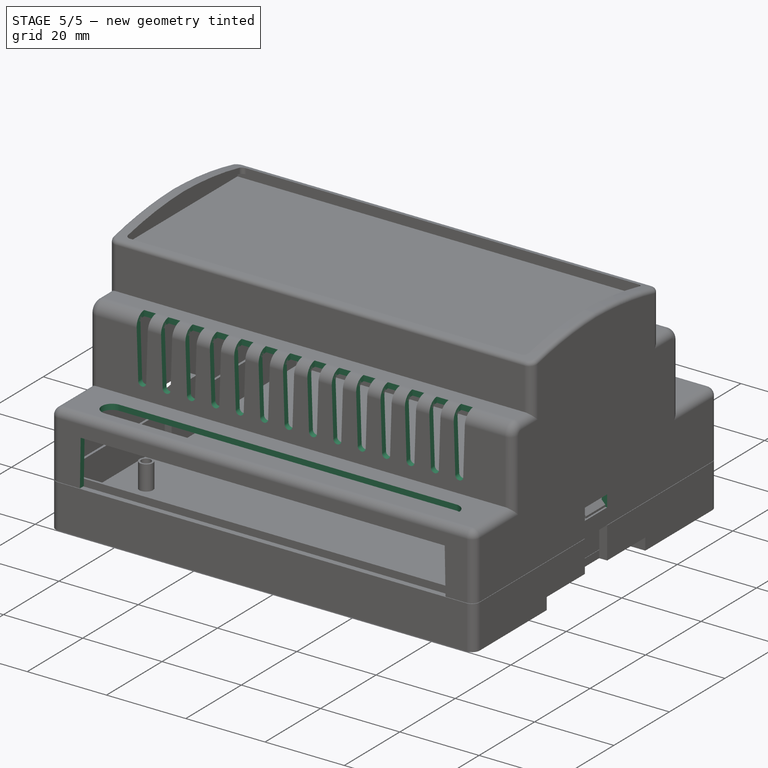
[diagram: stage 5 of 5 — iso view after this stage's code; geometry added in this stage tinted green]
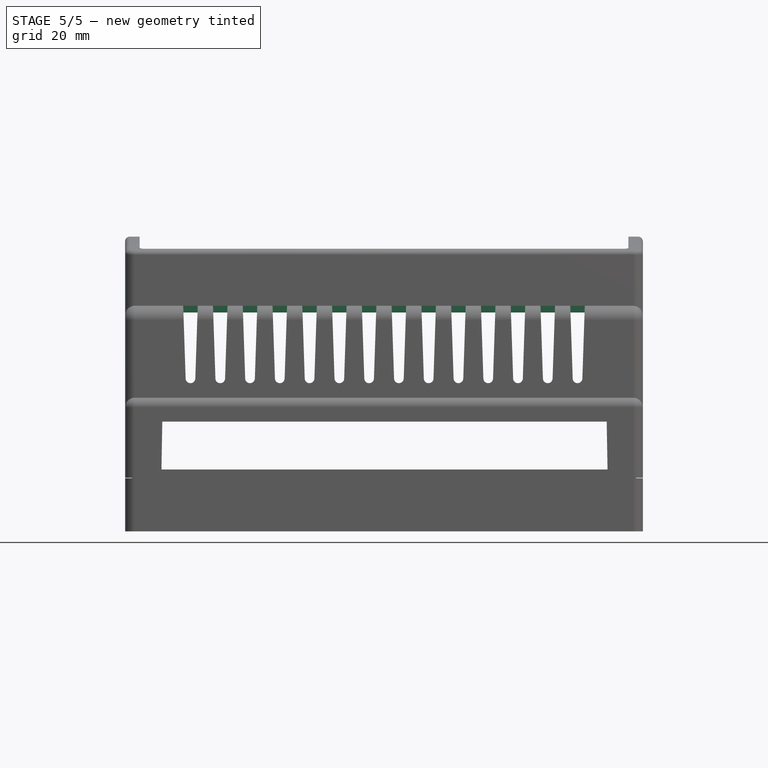
[diagram: stage 5 of 5 — front view after this stage's code; geometry added in this stage tinted green]
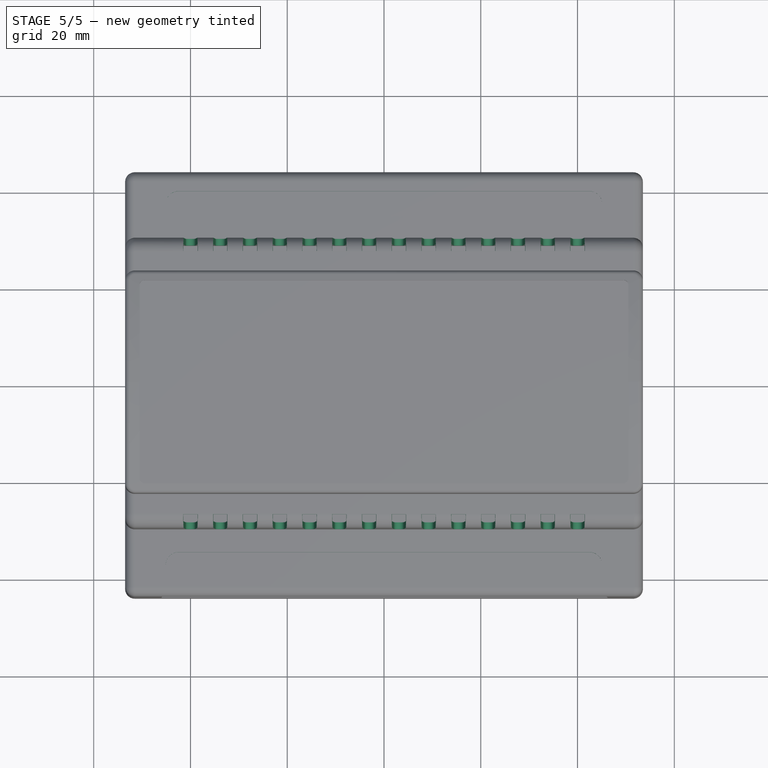
[diagram: stage 5 of 5 — top view after this stage's code; geometry added in this stage tinted green]
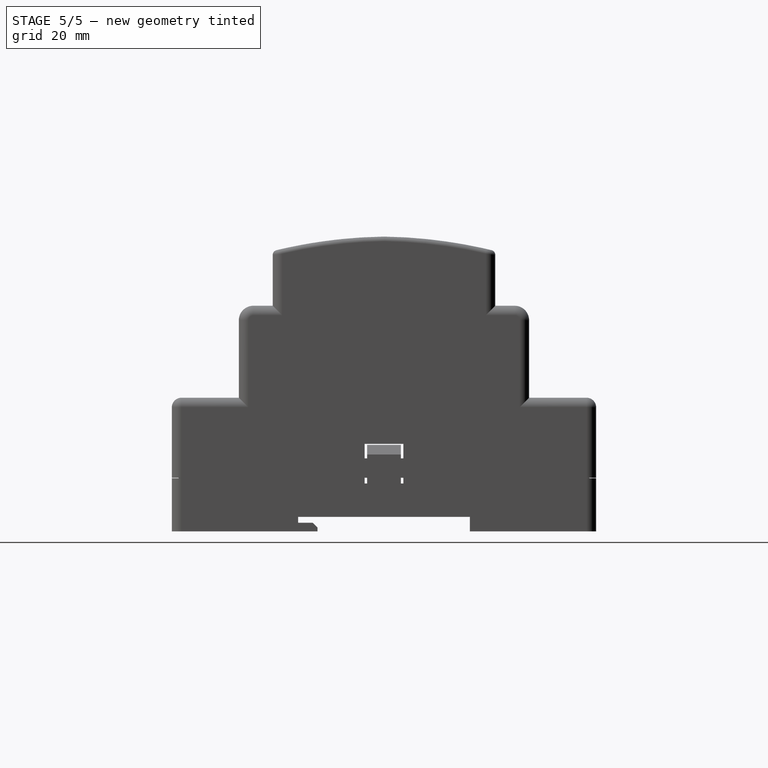
[diagram: stage 5 of 5 — right view after this stage's code; geometry added in this stage tinted green]
FEATURE [Sketcher::SketchObject] Sketch004
  ArcFitTolerance = 1e-06
  AttachmentSupport = -> [Pad001]
  FullyConstrained = true
  MakeInternals = false
  MapMode = 5
  Placement = pos=(0,3.6e-15,16.54) rot=(0,0,1;0rad)
  sketch-geometry (4):
    g0: ArcOfCircle CenterX=-42.5 CenterY=-37.3 CenterZ=0 NormalX=0 NormalY=0 NormalZ=1 AngleXU=0 Radius=2.6 StartAngle=1.5708 EndAngle=4.71239
    g1: ArcOfCircle CenterX=42.5 CenterY=-37.3 CenterZ=0 NormalX=0 NormalY=0 NormalZ=1 AngleXU=0 Radius=2.6 StartAngle=4.71239 EndAngle=7.85398
    g2: LineSegment StartX=-42.5 StartY=-34.7 StartZ=0 EndX=42.5 EndY=-34.7 EndZ=0
    g3: LineSegment StartX=-42.5 StartY=-39.9 StartZ=0 EndX=42.5 EndY=-39.9 EndZ=0
  constraints (9):
    c: Tangent(g0,g2) = 1.5708
    c: Tangent(g0,g3) = -1.5708
    c: Tangent(g1,g2) = 1.5708
    c: Tangent(g1,g3) = -1.5708
    c: Equal(g0,g1)
    c: DistanceY(g1,g-1) = 37.3
    c: Symmetric(g0,g1,g-2)
    c: DistanceX(g0,g1) = 85
    c: Radius(g1) = 2.6
FEATURE [PartDesign::Pocket] Pocket002
  BaseFeature = -> Pad001
  Direction = (0,0,-1)
  Length = 5
  Length2 = 5
  Profile = -> Sketch004
  ReferenceAxis = -> Sketch004 [N_Axis]
  Refine = true
  Suppressed = false
  Type = 1
FEATURE [PartDesign::Mirrored] Mirrored001
  BaseFeature = -> Pocket002
  MirrorPlane = -> XZ_Plane
  Originals = -> [Pocket002]
  Refine = true
  Suppressed = false
  TransformMode = 0
FEATURE [Sketcher::SketchObject] Sketch005
  ArcFitTolerance = 1e-06
  AttachmentSupport = -> [Mirrored001]
  ExternalGeometry = -> [Mirrored001]
  FullyConstrained = true
  MakeInternals = false
  MapMode = 5
  Placement = pos=(-6.6e-15,-30,0) rot=(1,0,0;1.5708rad)
  sketch-geometry (5):
    g0: LineSegment StartX=-41.5 StartY=35.54 StartZ=0 EndX=-38.5 EndY=35.54 EndZ=0
    g1: LineSegment StartX=-38.5 StartY=35.54 StartZ=0 EndX=-39.0006 EndY=20.5067 EndZ=0
    g2: ArcOfCircle CenterX=-40 CenterY=20.54 CenterZ=0 NormalX=0 NormalY=0 NormalZ=1 AngleXU=0 Radius=1 StartAngle=3.17488 EndAngle=6.2499
    g3: LineSegment StartX=-40.9994 StartY=20.5067 StartZ=0 EndX=-41.5 EndY=35.54 EndZ=0
    g4: LineSegment [constr] StartX=-40 StartY=35.54 StartZ=0 EndX=-40 EndY=20.54 EndZ=0
  constraints (14):
    c: PointOnObject(g0,g-3)
    c: PointOnObject(g0,g-3)
    c: Coincident(g0,g1)
    c: Tangent(g1,g2) = 1.5708
    c: Coincident(g2,g3)
    c: Coincident(g3,g0)
    c: Equal(g1,g3)
    c: Symmetric(g0,g0,g4)
    c: Coincident(g4,g2)
    c: Vertical(g4)
    c: DistanceX(g0,g0) = 3
    c: Radius(g2) = 1
    c: Distance(g2,g0) = 15
    c: Distance(g-2,g4) = 40
FEATURE [PartDesign::Fillet] Fillet004
  Base = -> Mirrored001 [Edge178,Edge227,Edge223,Edge191,Edge188,Edge189,Edge179,Edge187,Edge199,Edge180,Edge192,Edge200]
  BaseFeature = -> Mirrored001
  Radius = 1
  Refine = true
  SupportTransform = false
  Suppressed = false
  UseAllEdges = false
FEATURE [PartDesign::Fillet] Fillet005
  Base = -> Fillet004 [Edge27,Edge35,Edge41,Edge49]
  BaseFeature = -> Fillet004
  Radius = 1
  Refine = true
  SupportTransform = false
  Suppressed = false
  UseAllEdges = false
FEATURE [PartDesign::Pocket] Pocket003
  BaseFeature = -> Fillet005
  Direction = (0,1,-2e-16)
  Length = 2.8
  Length2 = 5
  Profile = -> Sketch005
  ReferenceAxis = -> Sketch005 [N_Axis]
  Refine = true
  Suppressed = false
  Type = 0
FEATURE [PartDesign::LinearPattern] LinearPattern
  Direction = -> Sketch005 [H_Axis]
  Length = 80
  Mode = 0
  Occurrences = 14
  Offset = 6.15385
  Refine = true
  Suppressed = false
  TransformMode = 0
FEATURE [PartDesign::Mirrored] Mirrored002
  MirrorPlane = -> XZ_Plane
  Refine = true
  Suppressed = false
  TransformMode = 0
FEATURE [PartDesign::MultiTransform] MultiTransform
  BaseFeature = -> Pocket003
  Originals = -> [Pocket003]
  Refine = true
  Suppressed = false
  TransformMode = 0
  Transformations = -> [LinearPattern,Mirrored002]
FEATURE [Sketcher::SketchObject] Sketch006
  ArcFitTolerance = 1e-06
  AttachmentSupport = -> [XZ_Plane]
  FullyConstrained = true
  MakeInternals = false
  MapMode = 5
  Placement = pos=(0,0,0) rot=(1,0,0;1.5708rad)
  sketch-geometry (5):
    g0: LineSegment StartX=-46.0262 StartY=0 StartZ=0 EndX=46.2287 EndY=0 EndZ=0
    g1: LineSegment StartX=46.2287 StartY=0 StartZ=0 EndX=46.0262 EndY=11.5982 EndZ=0
    g2: LineSegment StartX=46.0262 StartY=11.5982 StartZ=0 EndX=-45.8238 EndY=11.5982 EndZ=0
    g3: LineSegment StartX=-45.8238 StartY=11.5982 StartZ=0 EndX=-46.0262 EndY=0 EndZ=0
    g4: GeomPoint [constr] X=0 Y=5.79912 Z=0
  constraints (13):
    c: Coincident(g0,g1)
    c: Coincident(g1,g2)
    c: Coincident(g2,g3)
    c: Coincident(g3,g0)
    c: Horizontal(g0)
    c: Horizontal(g2)
    c: Symmetric(g2,g0,g4)
    c: Distance(g0,g2) = 11.6
    c: PointOnObject(g4,g-2)
    c: PointOnObject(g-1,g0)
    c: DistanceX(g2,g2) = 91.85
    c: Angle(g3,g2) = 1.58825
    c: Angle(g2,g1) = 1.58825
FEATURE [PartDesign::Pocket] Pocket004
  BaseFeature = -> MultiTransform
  Direction = (0,1,-2e-16)
  Length = 5
  Length2 = 5
  Midplane = true
  Profile = -> Sketch006
  ReferenceAxis = -> Sketch006 [N_Axis]
  Refine = true
  Suppressed = false
  Type = 1
FEATURE [Sketcher::SketchObject] Sketch014
  ArcFitTolerance = 1e-06
  AttachmentSupport = -> [YZ_Plane]
  ExternalGeometry = -> [Pocket004]
  FullyConstrained = true
  MakeInternals = false
  MapMode = 5
  Placement = pos=(0,0,0) rot=(0.57735,0.57735,0.57735;2.0944rad)
  sketch-geometry (5):
    g0: LineSegment StartX=4 StartY=4 StartZ=0 EndX=4 EndY=7 EndZ=0
    g1: LineSegment StartX=4 StartY=7 StartZ=0 EndX=-4 EndY=7 EndZ=0
    g2: LineSegment StartX=-4 StartY=7 StartZ=0 EndX=-4 EndY=4 EndZ=0
    g3: LineSegment StartX=-4 StartY=4 StartZ=0 EndX=4 EndY=4 EndZ=0
    g4: GeomPoint [constr] X=0 Y=5.5 Z=0
  constraints (13):
    c: Coincident(g0,g1)
    c: Coincident(g1,g2)
    c: Coincident(g2,g3)
    c: Coincident(g3,g0)
    c: Vertical(g0)
    c: Vertical(g2)
    c: Horizontal(g1)
    c: Horizontal(g3)
    c: Symmetric(g2,g0,g4)
    c: PointOnObject(g4,g-2)
    c: Distance(g-3,g3) = 4
    c: DistanceX(g1,g1) = 8
    c: DistanceY(g2,g2) = 3
FEATURE [PartDesign::Pocket] Pocket009
  BaseFeature = -> Pocket004
  Direction = (-1,0,0)
  Length = 5
  Length2 = 5
  Midplane = true
  Profile = -> Sketch014
  ReferenceAxis = -> Sketch014 [N_Axis]
  Refine = true
  Suppressed = false
  Type = 1
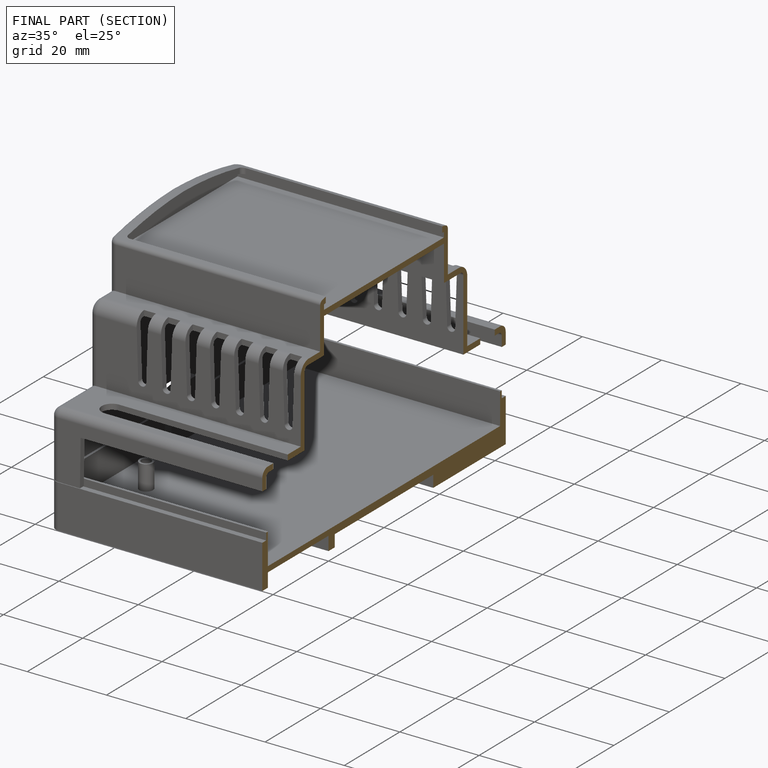
[diagram: finished part — half-section view (interior)]
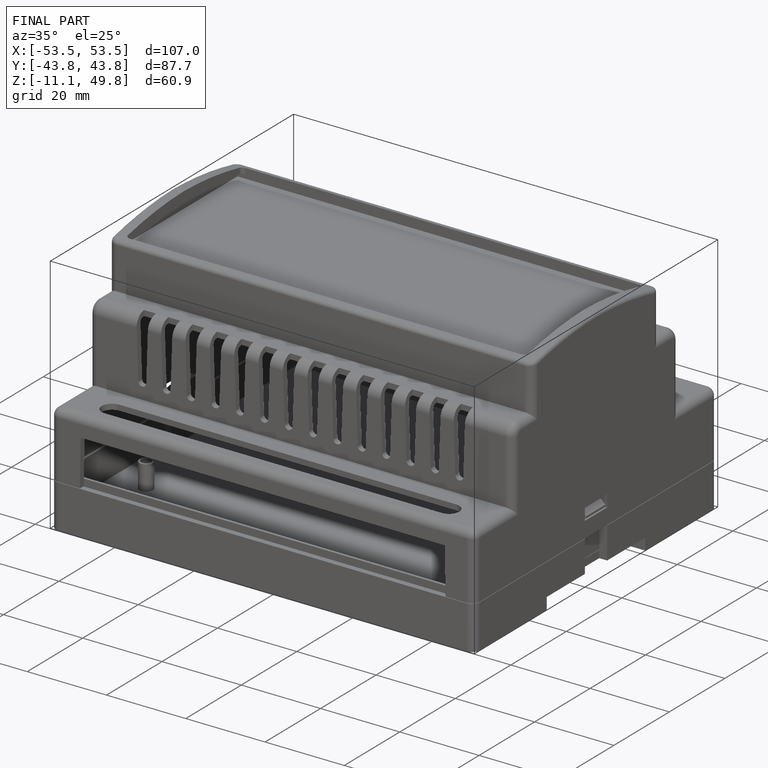
[diagram: finished part — iso view with bounding-box wireframe]
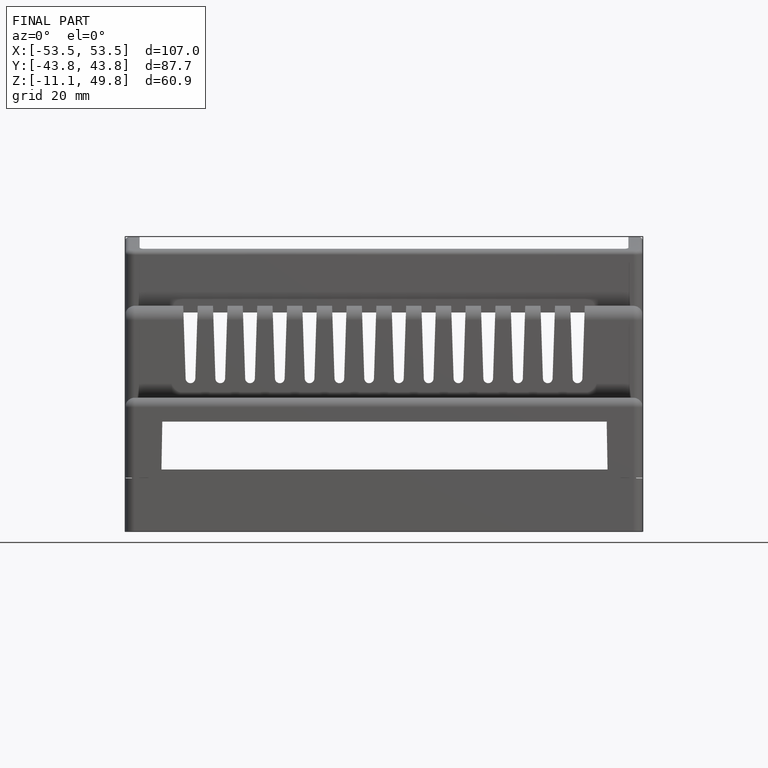
[diagram: finished part — front view with bounding-box wireframe]
